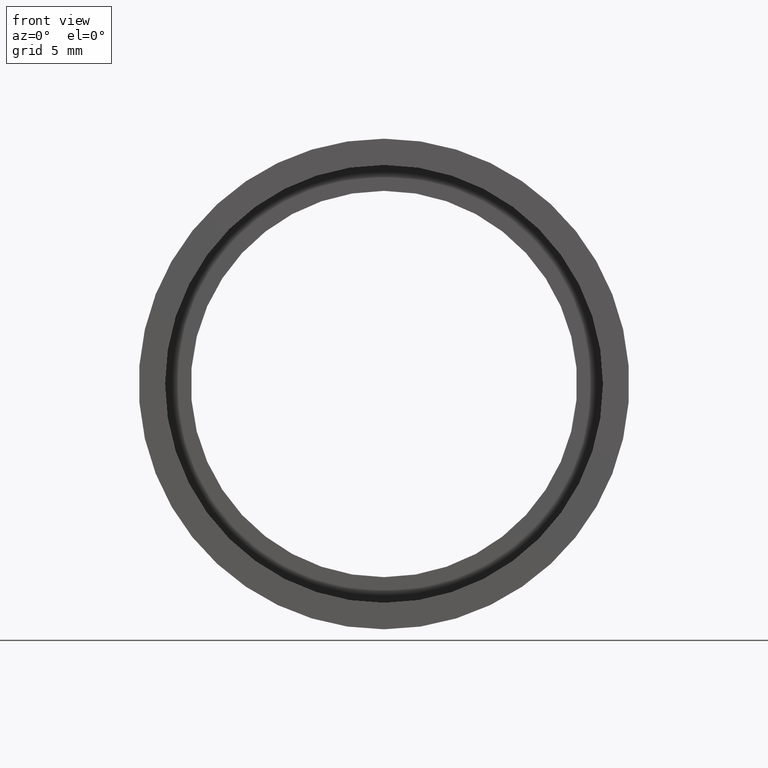
[diagram: clean part render]
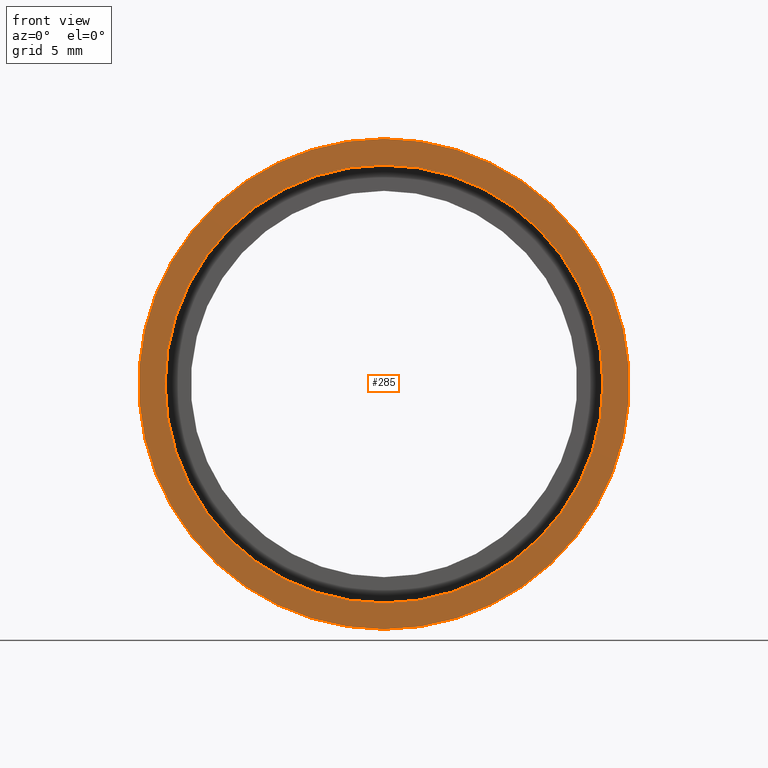
[diagram: same view with one face highlighted and labeled with its STEP entity id]
A machine part, front view. The second image highlights one B-rep face of the part: STEP entity #285.
In plain terms, the highlighted planar face has unit normal (-0, 1, 0).
Its self-contained STEP definition (entity closure, byte-faithful):
#20 = DIRECTION ( 'NONE',  ( 0.0000000000000000000, 0.0000000000000000000, 1.000000000000000000 ) ) ;
#23 = DIRECTION ( 'NONE',  ( -0.0000000000000000000, 1.000000000000000000, -0.0000000000000000000 ) ) ;
#32 = VERTEX_POINT ( 'NONE', #595 ) ;
#43 = CARTESIAN_POINT ( 'NONE',  ( 17.00000000000002100, -1.527582111260147300E-014, 0.0000000000000000000 ) ) ;
#51 = CIRCLE ( 'NONE', #464, 17.00000000000002100 ) ;
#63 = DIRECTION ( 'NONE',  ( 0.0000000000000000000, 0.0000000000000000000, 1.000000000000000000 ) ) ;
#72 = DIRECTION ( 'NONE',  ( -0.0000000000000000000, 1.000000000000000000, -0.0000000000000000000 ) ) ;
#83 = AXIS2_PLACEMENT_3D ( 'NONE', #116, #23, #20 ) ;
#116 = CARTESIAN_POINT ( 'NONE',  ( 0.0000000000000000000, -2.775557561562891400E-014, 0.0000000000000000000 ) ) ;
#132 = CARTESIAN_POINT ( 'NONE',  ( 2.332952152375710400E-015, -2.775557561562891400E-014, -19.05000000000002200 ) ) ;
#134 = EDGE_CURVE ( 'NONE', #248, #423, #559, .T. ) ;
#145 = EDGE_CURVE ( 'NONE', #423, #248, #516, .T. ) ;
#146 = PLANE ( 'NONE',  #245 ) ;
#159 = AXIS2_PLACEMENT_3D ( 'NONE', #448, #72, #63 ) ;
#178 = FACE_OUTER_BOUND ( 'NONE', #431, .T. ) ;
#219 = DIRECTION ( 'NONE',  ( 0.0000000000000000000, 0.0000000000000000000, 1.000000000000000000 ) ) ;
#235 = EDGE_CURVE ( 'NONE', #32, #506, #457, .T. ) ;
#245 = AXIS2_PLACEMENT_3D ( 'NONE', #43, #467, #569 ) ;
#246 = CARTESIAN_POINT ( 'NONE',  ( 2.081899558550503000E-015, -2.775557561562891400E-014, -17.00000000000002100 ) ) ;
#248 = VERTEX_POINT ( 'NONE', #132 ) ;
#276 = CARTESIAN_POINT ( 'NONE',  ( 0.0000000000000000000, -2.775557561562891400E-014, 0.0000000000000000000 ) ) ;
#285 = ADVANCED_FACE ( 'NONE', ( #178, #505 ), #146, .F. ) ;
#325 = DIRECTION ( 'NONE',  ( -0.0000000000000000000, 1.000000000000000000, -0.0000000000000000000 ) ) ;
#360 = CARTESIAN_POINT ( 'NONE',  ( 0.0000000000000000000, -2.775557561562891400E-014, 0.0000000000000000000 ) ) ;
#423 = VERTEX_POINT ( 'NONE', #430 ) ;
#429 = ORIENTED_EDGE ( 'NONE', *, *, #134, .F. ) ;
#430 = CARTESIAN_POINT ( 'NONE',  ( 0.0000000000000000000, -2.775557561562891400E-014, 19.05000000000002200 ) ) ;
#431 = EDGE_LOOP ( 'NONE', ( #476, #429 ) ) ;
#448 = CARTESIAN_POINT ( 'NONE',  ( 0.0000000000000000000, -2.775557561562891400E-014, 0.0000000000000000000 ) ) ;
#457 = CIRCLE ( 'NONE', #537, 17.00000000000002100 ) ;
#464 = AXIS2_PLACEMENT_3D ( 'NONE', #360, #502, #219 ) ;
#467 = DIRECTION ( 'NONE',  ( -0.0000000000000000000, 1.000000000000000000, 0.0000000000000000000 ) ) ;
#476 = ORIENTED_EDGE ( 'NONE', *, *, #145, .F. ) ;
#490 = EDGE_LOOP ( 'NONE', ( #557, #496 ) ) ;
#496 = ORIENTED_EDGE ( 'NONE', *, *, #581, .T. ) ;
#502 = DIRECTION ( 'NONE',  ( -0.0000000000000000000, 1.000000000000000000, -0.0000000000000000000 ) ) ;
#505 = FACE_BOUND ( 'NONE', #490, .T. ) ;
#506 = VERTEX_POINT ( 'NONE', #246 ) ;
#516 = CIRCLE ( 'NONE', #159, 19.05000000000002200 ) ;
#537 = AXIS2_PLACEMENT_3D ( 'NONE', #276, #325, #609 ) ;
#557 = ORIENTED_EDGE ( 'NONE', *, *, #235, .T. ) ;
#559 = CIRCLE ( 'NONE', #83, 19.05000000000002200 ) ;
#569 = DIRECTION ( 'NONE',  ( 0.0000000000000000000, 0.0000000000000000000, 1.000000000000000000 ) ) ;
#581 = EDGE_CURVE ( 'NONE', #506, #32, #51, .T. ) ;
#595 = CARTESIAN_POINT ( 'NONE',  ( 0.0000000000000000000, -2.775557561562891400E-014, 17.00000000000002100 ) ) ;
#609 = DIRECTION ( 'NONE',  ( 0.0000000000000000000, 0.0000000000000000000, 1.000000000000000000 ) ) ;